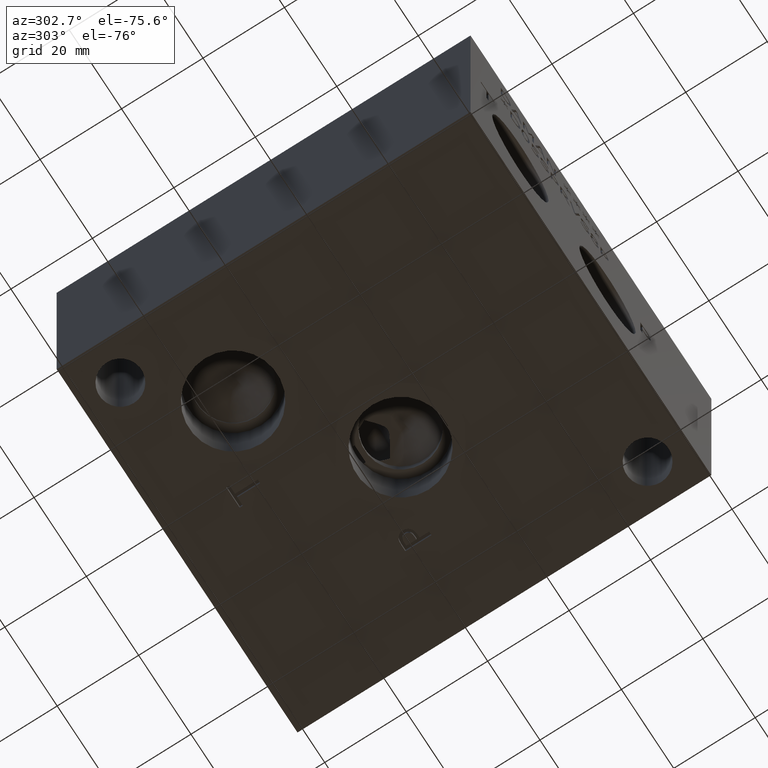
[diagram: clean part render]
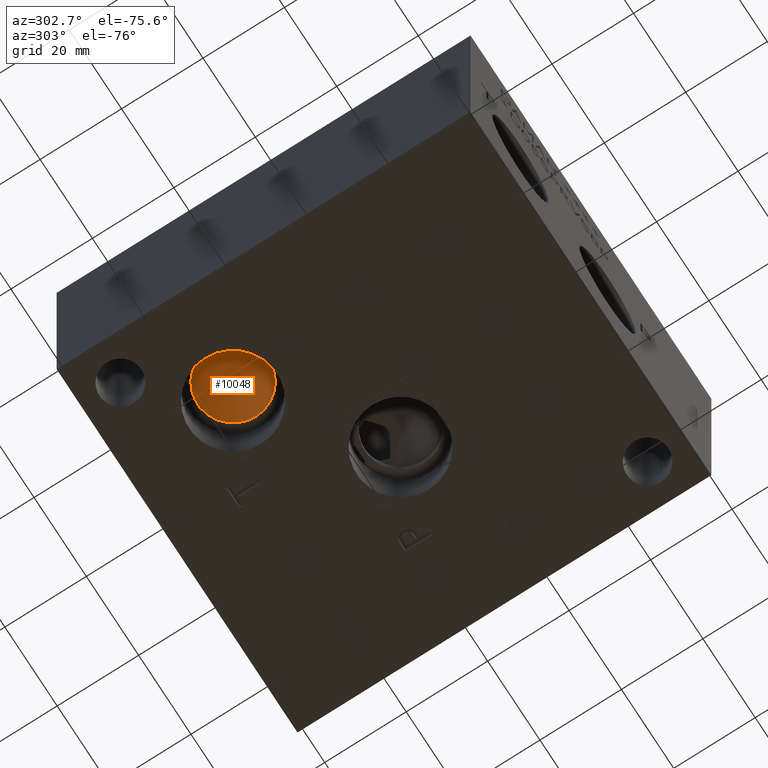
[diagram: same view with one face highlighted and labeled with its STEP entity id]
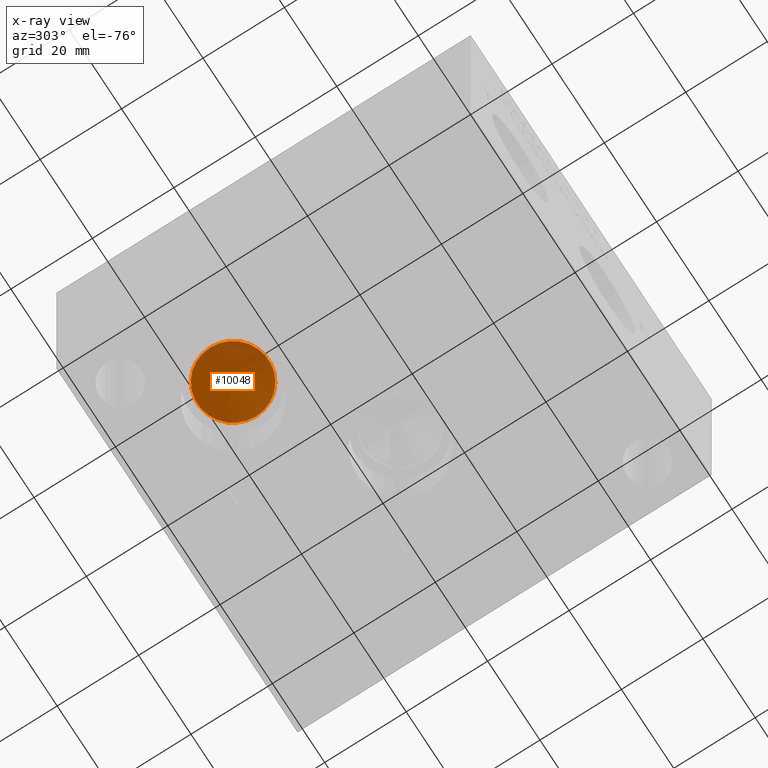
[diagram: x-ray of the same camera — body ghosted, the highlighted face saturated]
A machine part, auxiliary view. The second image highlights one B-rep face of the part: STEP entity #10048.
The next image is the same camera in x-ray: the body ghosted, the highlighted face saturated — about 4% of this face is hidden behind the body in this view.
In plain terms, the highlighted conical surface has half-angle 60 deg.
Its self-contained STEP definition (entity closure, byte-faithful):
#1449=FACE_OUTER_BOUND('',#2013,.T.);
#2013=EDGE_LOOP('',(#9225,#9226,#9227,#9228));
#3021=LINE('',#17033,#3989);
#3989=VECTOR('',#12194,4.3688);
#4068=CIRCLE('',#10456,8.7376);
#4069=CIRCLE('',#10457,8.7376);
#5296=VERTEX_POINT('',#17029);
#5297=VERTEX_POINT('',#17030);
#5298=VERTEX_POINT('',#17032);
#6647=EDGE_CURVE('',#5296,#5297,#4068,.T.);
#6648=EDGE_CURVE('',#5297,#5298,#3021,.T.);
#6649=EDGE_CURVE('',#5297,#5296,#4069,.T.);
#9225=ORIENTED_EDGE('',*,*,#6647,.T.);
#9226=ORIENTED_EDGE('',*,*,#6648,.T.);
#9227=ORIENTED_EDGE('',*,*,#6648,.F.);
#9228=ORIENTED_EDGE('',*,*,#6649,.T.);
#9588=CONICAL_SURFACE('',#10455,4.3688,1.0471975511966);
#10048=ADVANCED_FACE('',(#1449),#9588,.F.);
#10455=AXIS2_PLACEMENT_3D('',#17028,#12190,#12191);
#10456=AXIS2_PLACEMENT_3D('',#17031,#12192,#12193);
#10457=AXIS2_PLACEMENT_3D('',#17034,#12195,#12196);
#12190=DIRECTION('center_axis',(0.,0.,-1.));
#12191=DIRECTION('ref_axis',(1.,0.,0.));
#12192=DIRECTION('center_axis',(0.,0.,-1.));
#12193=DIRECTION('ref_axis',(1.,0.,0.));
#12194=DIRECTION('',(0.866025403784439,-1.06057523872491E-16,0.5));
#12195=DIRECTION('center_axis',(0.,0.,-1.));
#12196=DIRECTION('ref_axis',(1.,0.,0.));
#17028=CARTESIAN_POINT('Origin',(25.4,74.5998,18.3937978560356));
#17029=CARTESIAN_POINT('',(34.1376,74.5998,15.87147));
#17030=CARTESIAN_POINT('',(16.6624,74.5998,15.87147));
#17031=CARTESIAN_POINT('Origin',(25.4,74.5998,15.87147));
#17032=CARTESIAN_POINT('',(25.4,74.5998,20.9161257120713));
#17033=CARTESIAN_POINT('',(21.0312,74.5998,18.3937978560356));
#17034=CARTESIAN_POINT('Origin',(25.4,74.5998,15.87147));